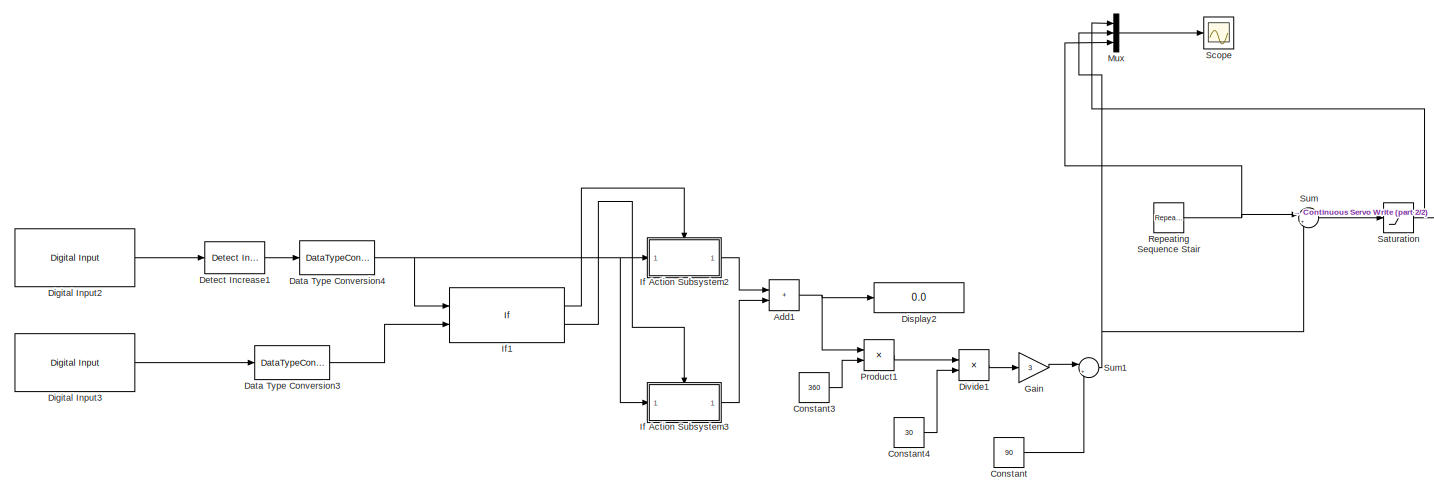
[diagram: root canvas - part 1/2, most of the canvas]
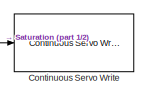
[diagram: root canvas - part 2/2, middle right region]
MODEL slx_4c7ca1633d26
KIND model
CONFIG AbsTol = auto
CONFIG EnableMultiTasking = on
CONFIG FixedStep = 0.001
CONFIG MaxStep = auto
CONFIG MinStep = auto
CONFIG RelTol = 1e-3
CONFIG SampleTimeConstraint = Unconstrained
CONFIG SolverName = FixedStepAuto
CONFIG StartTime = 0.0
CONFIG StopTime = 50.0
BLOCK [Sum] Add1
  IconShape = rectangular
  Ports = [2, 1]
BLOCK [Constant] Constant
  Value = 90
BLOCK [Constant] Constant3
  Value = 360
BLOCK [Constant] Constant4
  Value = 30
BLOCK [Reference] Continuous Servo Write  REF=arduinolib/Continuous Servo Write
  Ports = [1]
  SourceBlock = arduinolib/Continuous Servo Write
  SourceProductBaseCode = ARDUINO
  SourceType = Arduino Continuous Servo Write
BLOCK [DataTypeConversion] Data Type Conversion3
  OutDataTypeStr = int8
  RndMeth = Floor
  SaturateOnIntegerOverflow = off
BLOCK [DataTypeConversion] Data Type Conversion4
  OutDataTypeStr = int8
  RndMeth = Floor
  SaturateOnIntegerOverflow = off
BLOCK [Reference] Detect Increase1  REF=simulink/Logic and Bit
Operations/Detect
Increase
  Ports = [1, 1]
  SourceBlock = simulink/Logic and Bit\nOperations/Detect\nIncrease
  SourceProductBaseCode = SL
  SourceType = Detect Increase
BLOCK [Reference] Digital Input2  REF=arduinolib/Digital Input
  Ports = [0, 1]
  SourceBlock = arduinolib/Digital Input
  SourceProductBaseCode = ARDUINO
  SourceType = Arduino Digital Input
BLOCK [Reference] Digital Input3  REF=arduinolib/Digital Input
  Ports = [0, 1]
  SourceBlock = arduinolib/Digital Input
  SourceProductBaseCode = ARDUINO
  SourceType = Arduino Digital Input
BLOCK [Display] Display2
  Decimation = 1
  Ports = [1]
BLOCK [Product] Divide1
  Inputs = */
  Ports = [2, 1]
BLOCK [Gain] Gain
  Gain = 3
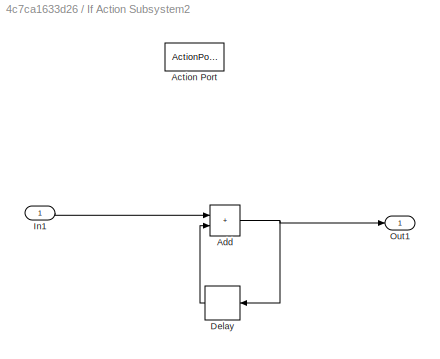
BLOCK [SubSystem] If Action Subsystem2
  Ports = [1, 1, 0, 0, 0, 0, 0, 1]
  RequestExecContextInheritance = off
  TreatAsAtomicUnit = on
BLOCK [ActionPort] If Action Subsystem2/Action Port
  ActionPortLabel = if(u1 >0 & u2==0)
BLOCK [Sum] If Action Subsystem2/Add
  IconShape = rectangular
  Ports = [2, 1]
BLOCK [Delay] If Action Subsystem2/Delay
  DelayLength = 1
  InitialCondition = 0
  InputPortMap = u0
  Ports = [1, 1]
BLOCK [Inport] If Action Subsystem2/In1
BLOCK [Outport] If Action Subsystem2/Out1
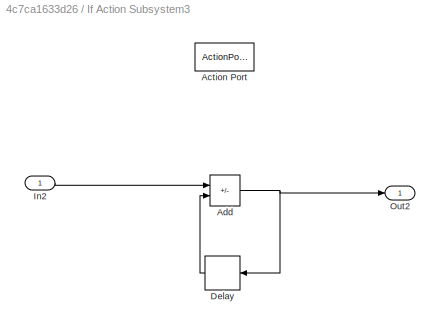
BLOCK [SubSystem] If Action Subsystem3
  Ports = [1, 1, 0, 0, 0, 0, 0, 1]
  RequestExecContextInheritance = off
  TreatAsAtomicUnit = on
BLOCK [ActionPort] If Action Subsystem3/Action Port
  ActionPortLabel = elseif( u1 >0  & u2==1)
BLOCK [Sum] If Action Subsystem3/Add
  IconShape = rectangular
  Inputs = -+
  Ports = [2, 1]
BLOCK [Delay] If Action Subsystem3/Delay
  DelayLength = 1
  InitialCondition = 0
  InputPortMap = u0
  Ports = [1, 1]
BLOCK [Inport] If Action Subsystem3/In2
BLOCK [Outport] If Action Subsystem3/Out2
BLOCK [If] If1
  ElseIfExpressions = u1 >0  & u2==1
  IfExpression = u1 >0 & u2==0
  NumInputs = 2
  Ports = [2, 2]
  ShowElse = off
BLOCK [Mux] Mux
  DisplayOption = bar
  Inputs = 3
  Ports = [3, 1]
BLOCK [Product] Product1
  Ports = [2, 1]
BLOCK [Reference] Repeating Sequence Stair  REF=simulink/Sources/Repeating
Sequence
Stair
  Ports = [0, 1]
  SourceBlock = simulink/Sources/Repeating\nSequence\nStair
  SourceProductBaseCode = SL
  SourceType = Repeating Sequence Stair
BLOCK [Saturate] Saturation
  LowerLimit = 0
  UpperLimit = 180
BLOCK [Scope] Scope
  Floating = off
  NumInputPorts = 1
  Ports = [1]
  ScopeSpecificationString = Simulink.scopes.TimeScopeBlockCfg('CurrentConfiguration', extmgr.ConfigurationSet(extmgr.Configuration('Core','General UI',true),extmgr.Configuration('Core','Source UI',true),extmgr.Configuration('Sources','WiredSimulink',true),extmgr.Configuration('Visuals','Time Domain',true,'SerializedDisplays',{struct('MinYLimReal','-144.00000','MaxYLimReal','216.00000','YLabelReal','','MinYLimMag',' 0.00000',...<+1803ch>
BLOCK [Sum] Sum
  Inputs = |++
  Ports = [2, 1]
BLOCK [Sum] Sum1
  Inputs = |++
  Ports = [2, 1]
NET Add1:1 -> Display2:1, Product1:1
LINE Constant3:1 -> Product1:2
LINE Constant4:1 -> Divide1:2
LINE Constant:1 -> Sum1:2
LINE Data Type Conversion3:1 -> If1:2
NET Data Type Conversion4:1 -> If Action Subsystem2:1, If Action Subsystem3:1, If1:1
LINE Detect Increase1:1 -> Data Type Conversion4:1
LINE Digital Input2:1 -> Detect Increase1:1
LINE Digital Input3:1 -> Data Type Conversion3:1
LINE Divide1:1 -> Gain:1
LINE Gain:1 -> Sum1:1
NET If Action Subsystem2/Add:1 -> If Action Subsystem2/Delay:1, If Action Subsystem2/Out1:1
LINE If Action Subsystem2/Delay:1 -> If Action Subsystem2/Add:2
LINE If Action Subsystem2/In1:1 -> If Action Subsystem2/Add:1
LINE If Action Subsystem2:1 -> Add1:1
NET If Action Subsystem3/Add:1 -> If Action Subsystem3/Delay:1, If Action Subsystem3/Out2:1
LINE If Action Subsystem3/Delay:1 -> If Action Subsystem3/Add:2
LINE If Action Subsystem3/In2:1 -> If Action Subsystem3/Add:1
LINE If Action Subsystem3:1 -> Add1:2
LINE If1:1 -> If Action Subsystem2:ifaction
LINE If1:2 -> If Action Subsystem3:ifaction
LINE Mux:1 -> Scope:1
LINE Product1:1 -> Divide1:1
NET Repeating Sequence Stair:1 -> Mux:3, Sum:1
NET Saturation:1 -> Continuous Servo Write:1, Mux:1
NET Sum1:1 -> Mux:2, Sum:2
LINE Sum:1 -> Saturation:1
note: NET lines group one-source signal fan-out (src -> all destinations, sorted); 1:1 wires keep LINE
